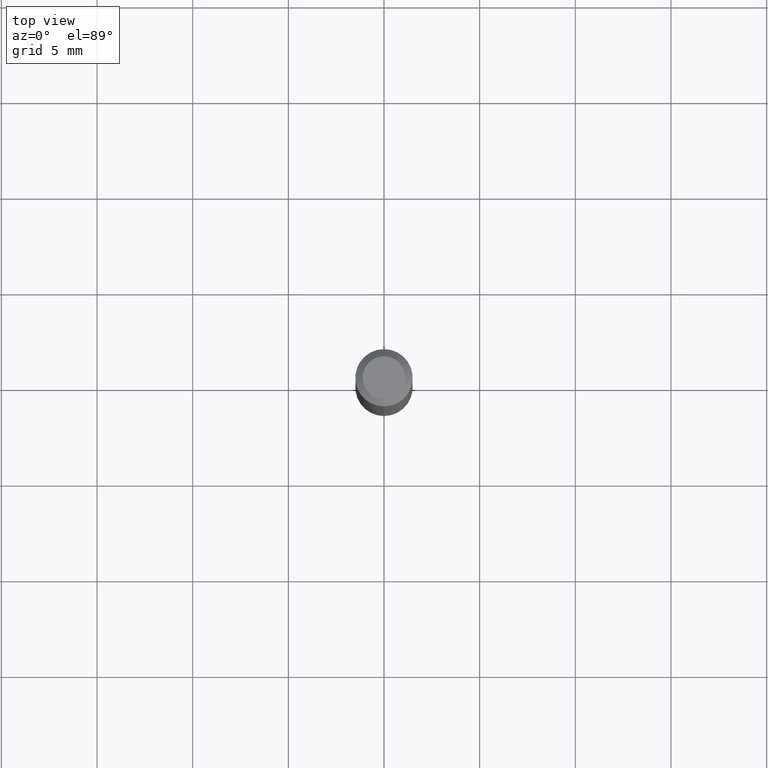
[diagram: clean part render]
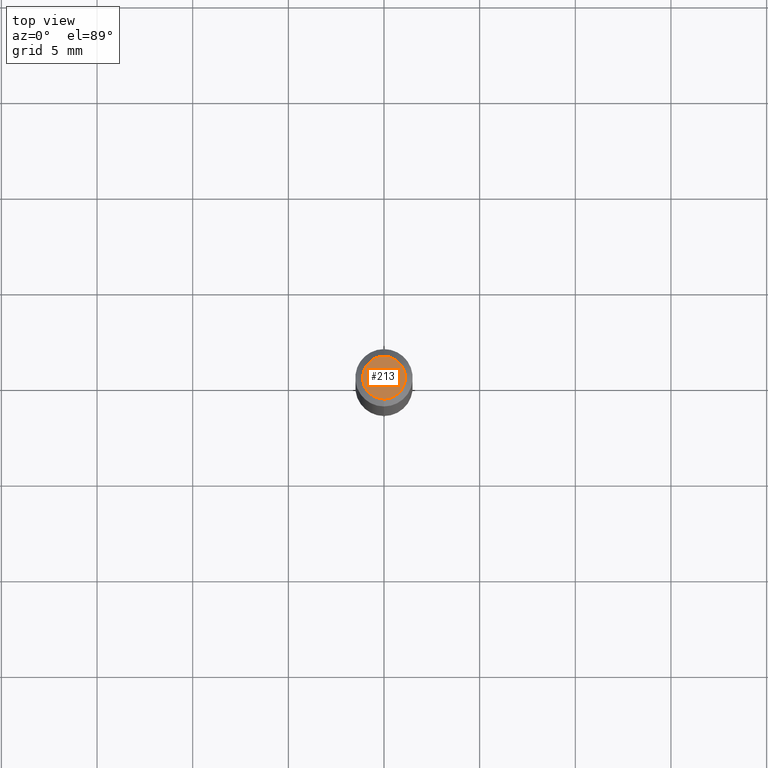
[diagram: same view with one face highlighted and labeled with its STEP entity id]
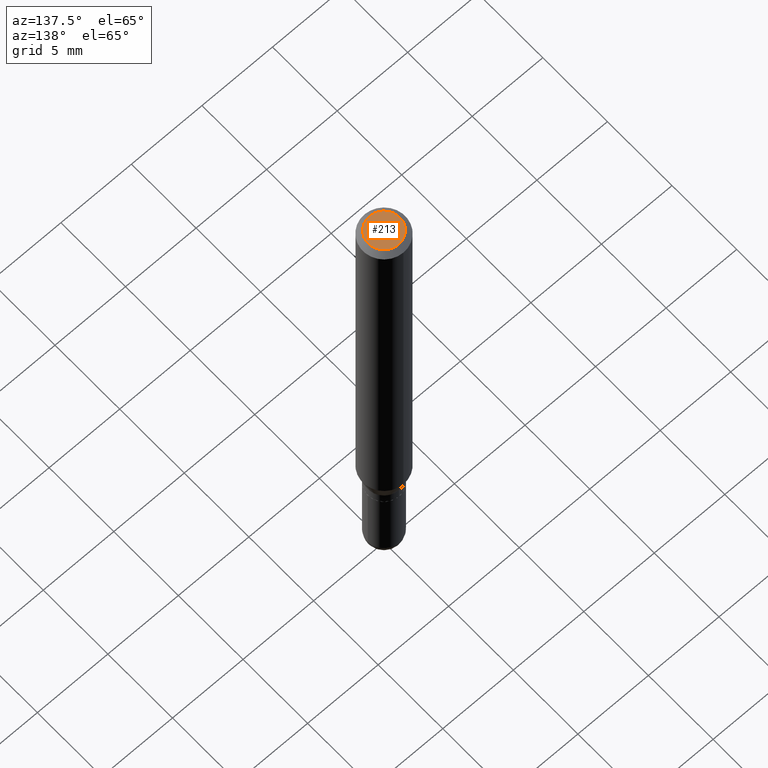
[diagram: same view with one face highlighted and labeled with its STEP entity id]
A machine part, top view. The second image highlights one B-rep face of the part: STEP entity #213.
A second angle (auxiliary view) of the same face is appended — the face is thin or edge-on in the first view.
In plain terms, the highlighted planar face has unit normal (0, -0, -1).
Its self-contained STEP definition (entity closure, byte-faithful):
#84 = CARTESIAN_POINT ( 'NONE',  ( 3.599717260347271507E-16, 0.04404999999999999888, -2.454645658922200893E-16 ) ) ;
#106 = CARTESIAN_POINT ( 'NONE',  ( 2.241511117468325318E-45, -3.200415226950590943E-31, -9.166165047030312473E-17 ) ) ;
#115 = AXIS2_PLACEMENT_3D ( 'NONE', #453, #169, #256 ) ;
#119 = DIRECTION ( 'NONE',  ( 2.445418673968279168E-29, -3.491553131031033645E-15, -1.000000000000000000 ) ) ;
#132 = VERTEX_POINT ( 'NONE', #481 ) ;
#139 = ORIENTED_EDGE ( 'NONE', *, *, #288, .T. ) ;
#142 = AXIS2_PLACEMENT_3D ( 'NONE', #321, #119, #278 ) ;
#147 = PLANE ( 'NONE',  #142 ) ;
#169 = DIRECTION ( 'NONE',  ( -2.445418673968279448E-29, 3.491553131031033645E-15, 1.000000000000000000 ) ) ;
#213 = ADVANCED_FACE ( 'NONE', ( #332 ), #147, .F. ) ;
#256 = DIRECTION ( 'NONE',  ( -6.982962677686265133E-15, -1.000000000000000000, 3.491553131031032856E-15 ) ) ;
#278 = DIRECTION ( 'NONE',  ( 6.982962677686265922E-15, 1.000000000000000000, -3.491553131031033645E-15 ) ) ;
#288 = EDGE_CURVE ( 'NONE', #394, #132, #491, .T. ) ;
#321 = CARTESIAN_POINT ( 'NONE',  ( 3.075995059520799729E-16, 0.04404999999999999888, -1.996337406570685947E-16 ) ) ;
#332 = FACE_OUTER_BOUND ( 'NONE', #352, .T. ) ;
#350 = CIRCLE ( 'NONE', #368, 0.04404999999999999888 ) ;
#352 = EDGE_LOOP ( 'NONE', ( #139, #372 ) ) ;
#368 = AXIS2_PLACEMENT_3D ( 'NONE', #106, #395, #462 ) ;
#372 = ORIENTED_EDGE ( 'NONE', *, *, #432, .T. ) ;
#394 = VERTEX_POINT ( 'NONE', #84 ) ;
#395 = DIRECTION ( 'NONE',  ( -2.445418673968279448E-29, 3.491553131031033645E-15, 1.000000000000000000 ) ) ;
#432 = EDGE_CURVE ( 'NONE', #132, #394, #350, .T. ) ;
#453 = CARTESIAN_POINT ( 'NONE',  ( 2.241511117468325318E-45, -3.200415226950590943E-31, -9.166165047030312473E-17 ) ) ;
#462 = DIRECTION ( 'NONE',  ( -6.982962677686265133E-15, -1.000000000000000000, 3.491553131031032856E-15 ) ) ;
#481 = CARTESIAN_POINT ( 'NONE',  ( -3.536586717851222218E-16, -0.04404999999999999888, 6.214126495161388914E-17 ) ) ;
#491 = CIRCLE ( 'NONE', #115, 0.04404999999999999888 ) ;